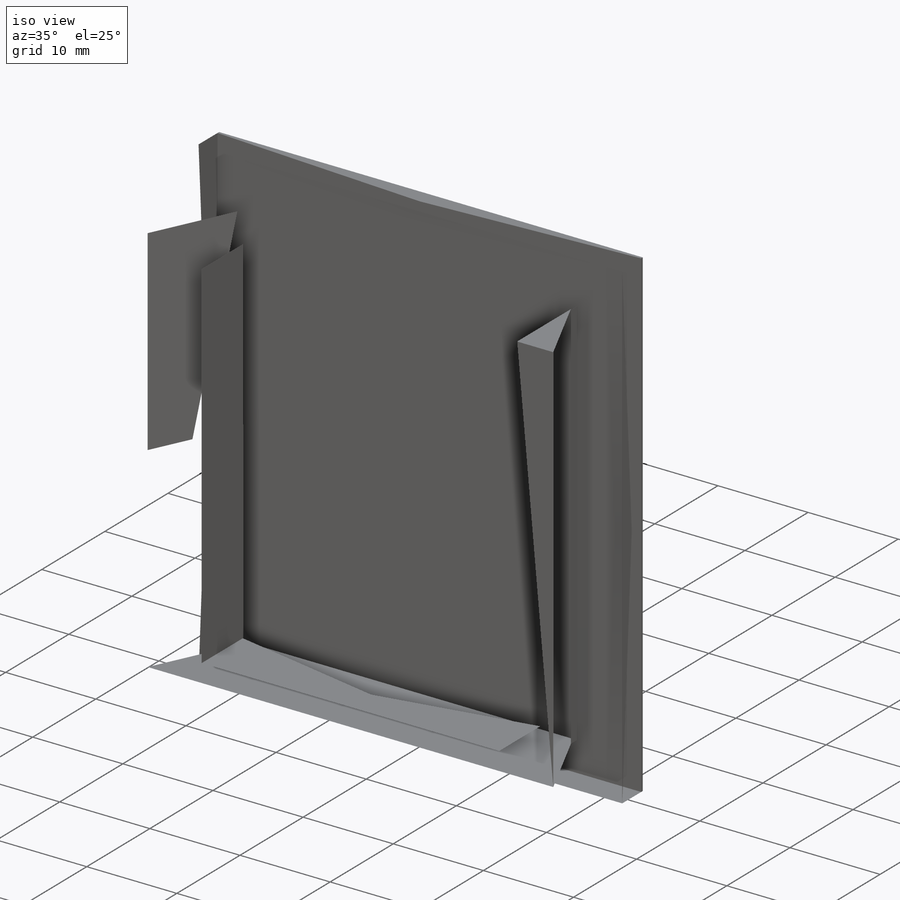
[diagram: iso view]
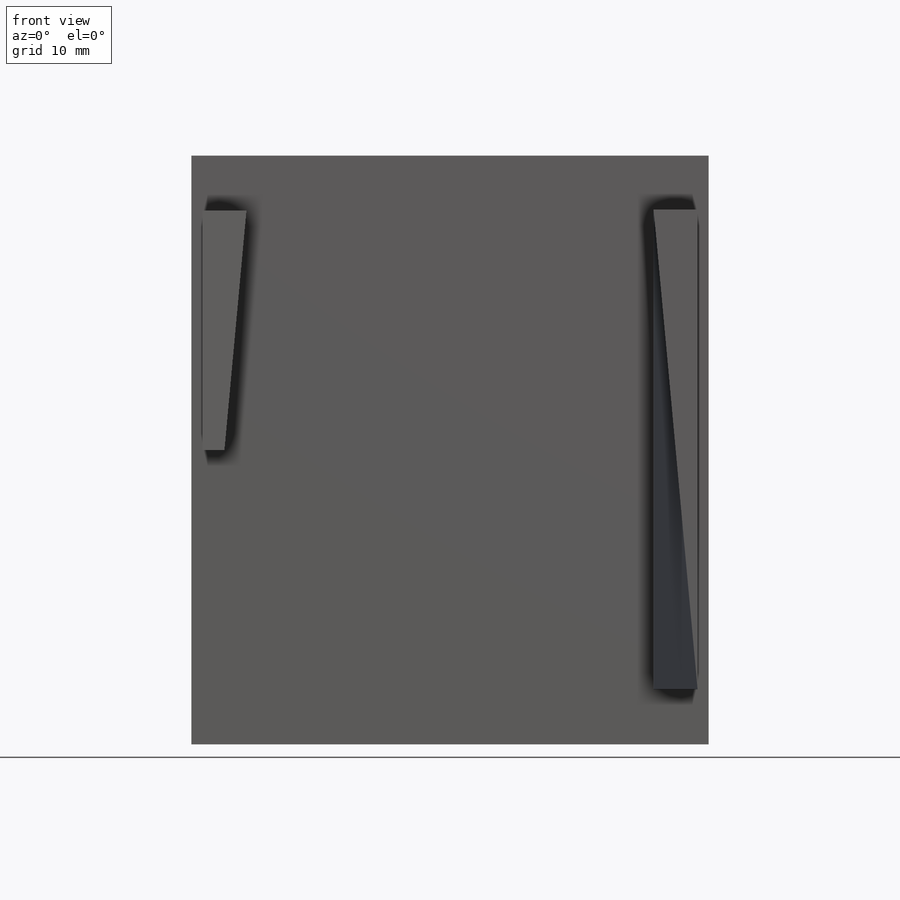
[diagram: front view]
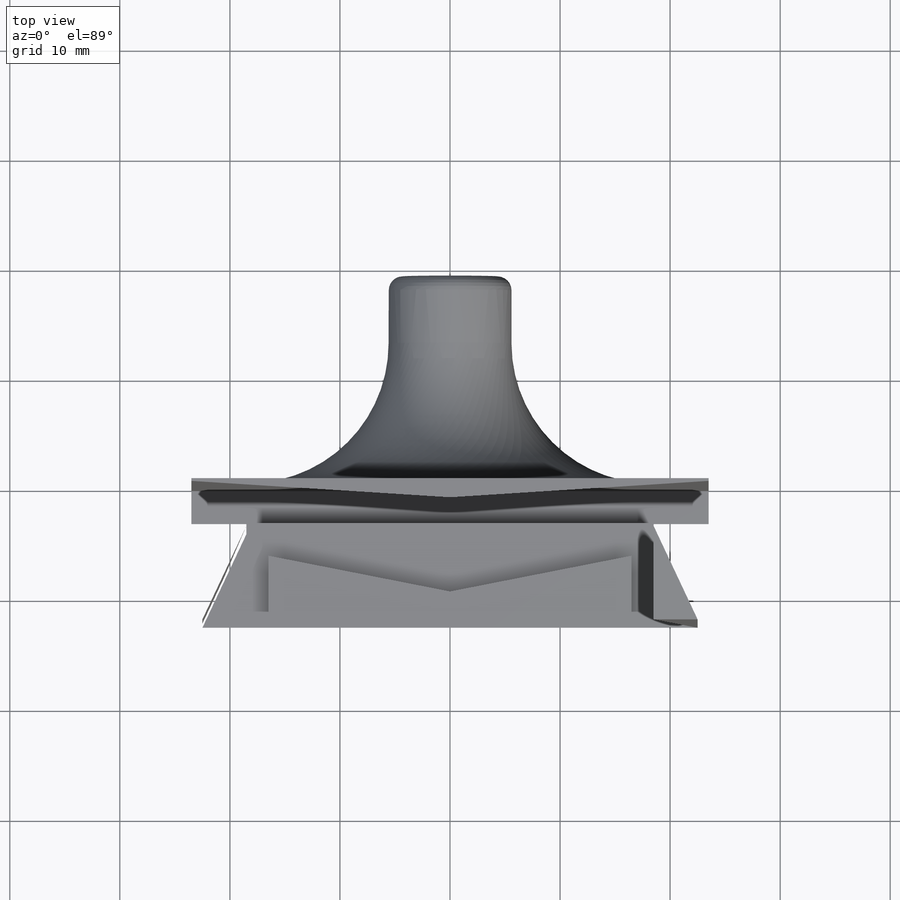
[diagram: top view]
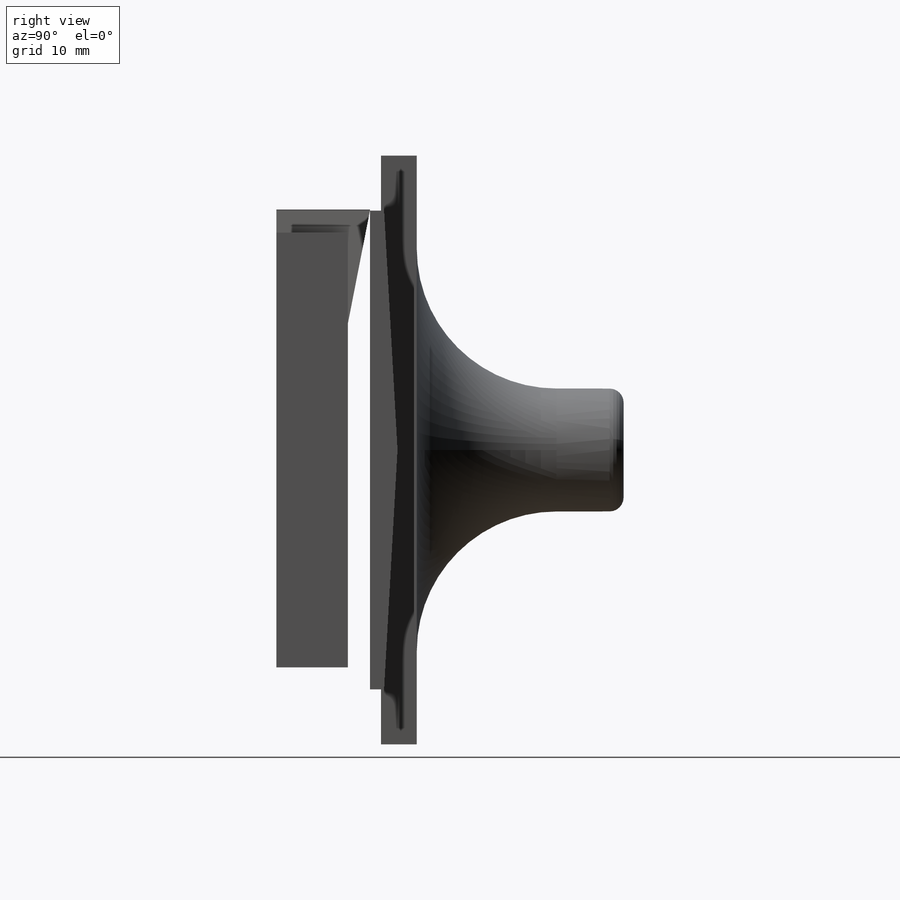
[diagram: right view]
SOLIDWORKS PART (.sldprt)
format: sldprt  version: not decoded by parser v0  size: 400,896 bytes
history: native  units: mm
features: sketch x53, plane x10, extrude x2, fillet x2, material x1 (+13 scaffold rows collapsed)
feature tree (81):
  scaffold x13  (default folders/planes/origin — collapsed)
  material  "Material <not specified>"
  plane  "Plane1"
  sketch  "Sketch1"
  plane  "Plane2"
  sketch  "Sketch2"
  sketch  "Surface-Plane2"
  plane  "Plane3"
  sketch  "Sketch3"
  sketch  "Surface-Plane3"
  plane  "Plane4"
  sketch  "Sketch4"
  sketch  "Surface-Plane4"
  plane  "Plane5"
  sketch  "Sketch5"
  sketch  "Surface-Plane5"
  plane  "Plane6"
  sketch  "Sketch6"
  sketch  "Surface-Plane6"
  sketch  "3DSketch1"
  sketch  "3DSketch2"
  sketch  "3DSketch3"
  sketch  "3DSketch4"
  sketch  "3DSketch5"
  sketch  "3DSketch6"
  sketch  "3DSketch7"
  sketch  "3DSketch8"
  sketch  "3DSketch9"
  sketch  "3DSketch10"
  sketch  "3DSketch11"
  sketch  "3DSketch12"
  sketch  "3DSketch13"
  sketch  "3DSketch14"
  sketch  "3DSketch15"
  sketch  "3DSketch16"
  plane  "Plane7"
  sketch  "Sketch7"
  sketch  "Surface-Plane7"
  sketch  "Sketch8"
  sketch  "Surface-Plane8"
  sketch  "Sketch9"
  sketch  "Surface-Plane9"
  sketch  "3DSketch17"
  sketch  "3DSketch18"
  sketch  "3DSketch19"
  sketch  "3DSketch20"
  sketch  "3DSketch21"
  sketch  "3DSketch22"
  sketch  "3DSketch23"
  sketch  "3DSketch24"
  plane  "Plane8"
  sketch  "Sketch10"
  sketch  "Surface-Plane10"
  sketch  "Sketch11"
  sketch  "Surface-Plane11"
  plane  "Plane9"
  sketch  "Sketch12"
  sketch  "Surface-Plane12"
  sketch  "Sketch13"
  sketch  "Surface-Plane13"
  plane  "Plane10"
  sketch  "Sketch14"
  sketch  "Surface-Plane14"
  sketch  "Sketch15"  dims[D1=4.826mm D2=3.175mm]
  extrude  "Boss-Extrude1"  Depth=19.05mm
  sketch  "Sketch16"  dims[D1=0.0mm]
  extrude  "Boss-Extrude2"  Depth=0.254mm
  fillet  "Fillet1"  Radius=12.7mm
  fillet  "Fillet3"  Radius=1.27mm
decode coverage: 6 of 57 modeling features carry decoded parameters
note: suppression state not decoded; provenance and decode notes live in map.json
